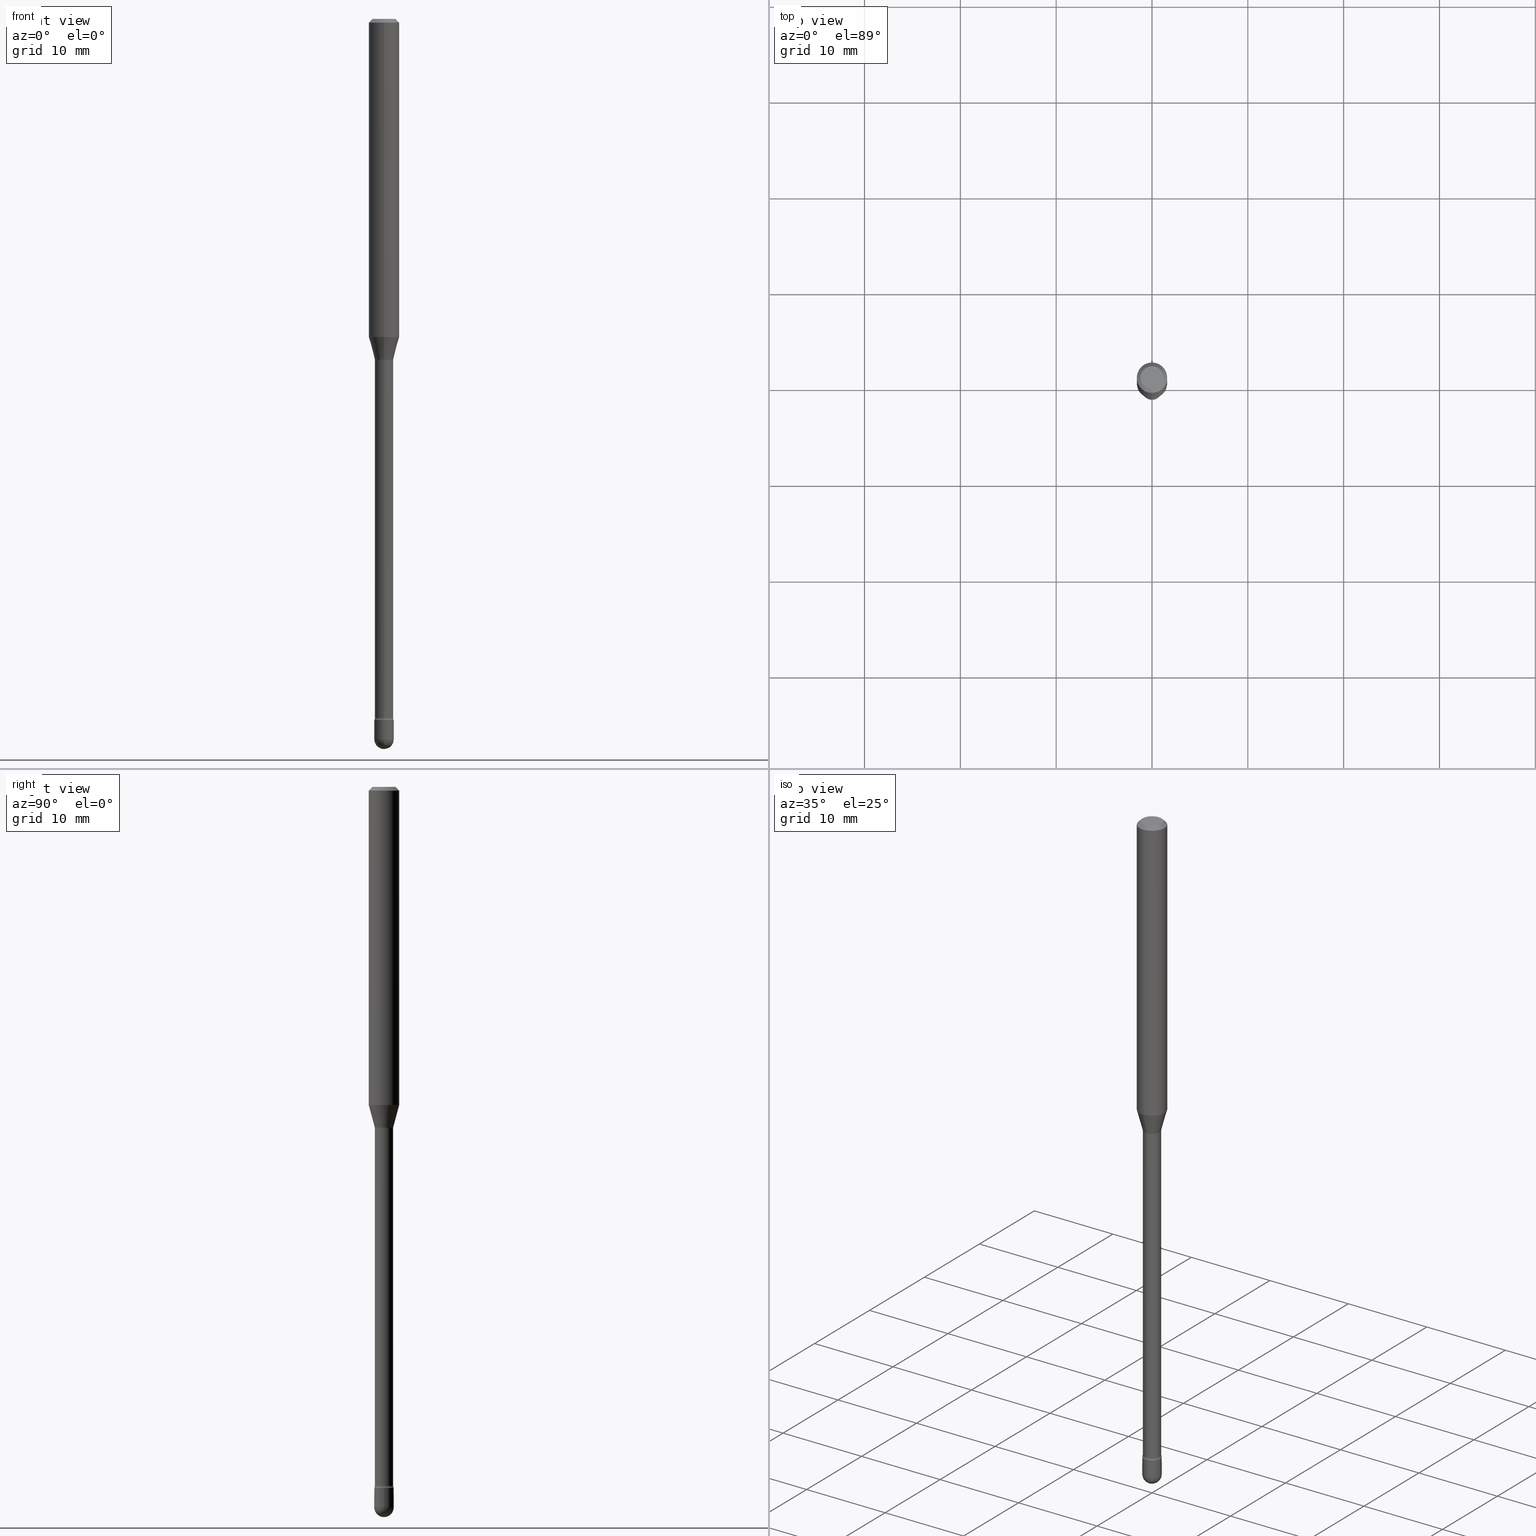
[diagram: canonical four-view strip — front | top / right | iso, engineering-drawing reading convention]
A machine part, canonical four-view strip (front | top / right | iso — engineering-drawing reading convention). The complete STEP part file that produces these views, byte-faithful:
ISO-10303-21;
HEADER;
FILE_DESCRIPTION (( 'STEP AP203' ),
    '1' );
FILE_NAME ('03958.STEP',
    '2024-04-09T21:27:05',
    ( '' ),
    ( '' ),
    'SwSTEP 2.0',
    'SolidWorks 2023',
    '' );
FILE_SCHEMA (( 'CONFIG_CONTROL_DESIGN' ));
ENDSEC;

DATA;
#1 = CARTESIAN_POINT ( 'NONE',  ( 7.042922645107763374E-29, -1.005550566135659145E-14, -2.880000000000000338 ) ) ;
#2 = DATE_AND_TIME ( #227, #59 ) ;
#3 = CARTESIAN_POINT ( 'NONE',  ( -1.169113584055446105E-44, 1.669184350826100908E-30, 4.780733988912460139E-16 ) ) ;
#4 = CARTESIAN_POINT ( 'NONE',  ( 3.196391155914031550E-29, -4.563635153160466520E-15, -1.307071934891535170 ) ) ;
#5 = DATE_TIME_ROLE ( 'creation_date' ) ;
#6 = EDGE_CURVE ( 'NONE', #301, #547, #500, .T. ) ;
#7 = FACE_OUTER_BOUND ( 'NONE', #32, .T. ) ;
#8 = COORDINATED_UNIVERSAL_TIME_OFFSET ( 5, 0, .BEHIND. ) ;
#9 = PRODUCT ( '03958', '03958', '', ( #136 ) ) ;
#10 = CIRCLE ( 'NONE', #329, 0.04000000000000000083 ) ;
#11 = CIRCLE ( 'NONE', #357, 0.03760000000000021658 ) ;
#12 = FACE_OUTER_BOUND ( 'NONE', #152, .T. ) ;
#13 = EDGE_CURVE ( 'NONE', #490, #332, #565, .T. ) ;
#14 = COORDINATED_UNIVERSAL_TIME_OFFSET ( 5, 0, .BEHIND. ) ;
#15 = ORIENTED_EDGE ( 'NONE', *, *, #549, .F. ) ;
#16 = PRODUCT_DEFINITION_SHAPE ( 'NONE', 'NONE',  #511 ) ;
#17 = CARTESIAN_POINT ( 'NONE',  ( 3.196391155914031550E-29, -4.563635153160466520E-15, -1.307071934891535170 ) ) ;
#18 = PERSON_AND_ORGANIZATION ( #374, #232 ) ;
#19 = DIRECTION ( 'NONE',  ( 1.000000000000000000, -7.105427357601001070E-15, 4.926315676103906127E-29 ) ) ;
#20 = EDGE_CURVE ( 'NONE', #375, #336, #282, .T. ) ;
#21 = CONICAL_SURFACE ( 'NONE', #539, 0.03811111260566397291, 0.2617993877991496854 ) ;
#22 = AXIS2_PLACEMENT_3D ( 'NONE', #296, #280, #557 ) ;
#23 = CIRCLE ( 'NONE', #245, 0.04749999999999999362 ) ;
#24 = EDGE_LOOP ( 'NONE', ( #538, #72, #457, #553 ) ) ;
#25 = ORIENTED_EDGE ( 'NONE', *, *, #380, .T. ) ;
#26 = EDGE_CURVE ( 'NONE', #328, #27, #354, .T. ) ;
#27 = VERTEX_POINT ( 'NONE', #87 ) ;
#28 = DIRECTION ( 'NONE',  ( 2.445459251773528233E-29, -3.491495021304371789E-15, -1.000000000000000000 ) ) ;
#29 = ORIENTED_EDGE ( 'NONE', *, *, #535, .F. ) ;
#30 = AXIS2_PLACEMENT_3D ( 'NONE', #412, #19, #491 ) ;
#31 = SPHERICAL_SURFACE ( 'NONE', #510, 0.04000000000000004940 ) ;
#32 = EDGE_LOOP ( 'NONE', ( #427, #160, #239, #149 ) ) ;
#33 = CYLINDRICAL_SURFACE ( 'NONE', #456, 0.04000000000000000083 ) ;
#34 = DIRECTION ( 'NONE',  ( 1.000000000000000000, -6.982962677686284065E-15, 0.000000000000000000 ) ) ;
#35 = ORIENTED_EDGE ( 'NONE', *, *, #286, .F. ) ;
#36 = CARTESIAN_POINT ( 'NONE',  ( 3.574424759935130628E-16, 0.03811111260565909487, -1.398092501787273179 ) ) ;
#37 = ORIENTED_EDGE ( 'NONE', *, *, #299, .F. ) ;
#38 = LINE ( 'NONE', #523, #284 ) ;
#39 = DIRECTION ( 'NONE',  ( -6.982962677686265922E-15, -1.000000000000000000, 3.491495021304371789E-15 ) ) ;
#40 = CIRCLE ( 'NONE', #422, 0.03999999999999999389 ) ;
#41 = AXIS2_PLACEMENT_3D ( 'NONE', #48, #189, #313 ) ;
#42 = DIRECTION ( 'NONE',  ( -6.982962677686265922E-15, -1.000000000000000000, 3.491495021304371789E-15 ) ) ;
#43 = CARTESIAN_POINT ( 'NONE',  ( -2.793185071073799766E-16, -0.04000000000001003447, -2.880000000000000338 ) ) ;
#44 = CC_DESIGN_DATE_AND_TIME_ASSIGNMENT ( #321, #446, ( #566 ) ) ;
#45 = DIRECTION ( 'NONE',  ( 1.000000000000000000, -6.982962677686285643E-15, 0.000000000000000000 ) ) ;
#46 = DIRECTION ( 'NONE',  ( -2.445468806185136597E-29, 3.491481338843145583E-15, 1.000000000000000000 ) ) ;
#47 = DIRECTION ( 'NONE',  ( -6.982962677686266711E-15, -1.000000000000000000, 0.000000000000000000 ) ) ;
#48 = CARTESIAN_POINT ( 'NONE',  ( 0.000000000000000000, 0.000000000000000000, 0.000000000000000000 ) ) ;
#49 = CIRCLE ( 'NONE', #366, 0.04000000000000004940 ) ;
#50 = AXIS2_PLACEMENT_3D ( 'NONE', #128, #28, #503 ) ;
#51 = TOROIDAL_SURFACE ( 'NONE', #369, 0.05260000000000000092, 0.01500000000000002547 ) ;
#52 = DIRECTION ( 'NONE',  ( -2.445459251773528513E-29, 3.491495021304371789E-15, 1.000000000000000000 ) ) ;
#53 = APPLICATION_PROTOCOL_DEFINITION ( 'international standard', 'config_control_design', 1994, #556 ) ;
#54 = ADVANCED_FACE ( 'NONE', ( #7 ), #21, .T. ) ;
#55 = CARTESIAN_POINT ( 'NONE',  ( 3.418978243330885643E-29, -4.881433009313237785E-15, -1.398092501787273179 ) ) ;
#56 = DIRECTION ( 'NONE',  ( -2.445459251773528513E-29, 3.491495021304371789E-15, 1.000000000000000000 ) ) ;
#57 = COORDINATED_UNIVERSAL_TIME_OFFSET ( 5, 0, .BEHIND. ) ;
#58 = AXIS2_PLACEMENT_3D ( 'NONE', #64, #145, #235 ) ;
#59 = LOCAL_TIME ( 17, 27, 5.000000000000000000, #57 ) ;
#60 = DIRECTION ( 'NONE',  ( -1.000000000000000000, 6.982962677686265922E-15, -4.883557194083112340E-29 ) ) ;
#61 = PERSON_AND_ORGANIZATION ( #374, #232 ) ;
#62 = ORIENTED_EDGE ( 'NONE', *, *, #86, .F. ) ;
#63 = ADVANCED_FACE ( 'NONE', ( #260 ), #303, .F. ) ;
#64 = CARTESIAN_POINT ( 'NONE',  ( 2.023483380808133062E-45, -2.889151225446079243E-31, -8.274638215463707693E-17 ) ) ;
#65 = ORIENTED_EDGE ( 'NONE', *, *, #505, .F. ) ;
#66 = EDGE_CURVE ( 'NONE', #490, #362, #49, .T. ) ;
#67 = CIRCLE ( 'NONE', #454, 0.06250000000000000000 ) ;
#68 = CIRCLE ( 'NONE', #30, 0.01500000000000002720 ) ;
#69 = PLANE ( 'NONE',  #244 ) ;
#70 = VERTEX_POINT ( 'NONE', #398 ) ;
#71 = DIRECTION ( 'NONE',  ( -6.982962677686265922E-15, -1.000000000000000000, 3.491495021304371000E-15 ) ) ;
#72 = ORIENTED_EDGE ( 'NONE', *, *, #193, .T. ) ;
#73 = CONICAL_SURFACE ( 'NONE', #493, 0.06250000000000000000, 0.7853981633974483900 ) ;
#74 = CARTESIAN_POINT ( 'NONE',  ( 2.756905814749898778E-16, 0.03759999999999019682, -2.871861204020250469 ) ) ;
#75 = ORIENTED_EDGE ( 'NONE', *, *, #169, .F. ) ;
#76 = FACE_OUTER_BOUND ( 'NONE', #208, .T. ) ;
#77 = EDGE_LOOP ( 'NONE', ( #326, #502, #236, #462 ) ) ;
#78 = CARTESIAN_POINT ( 'NONE',  ( 3.668188877660312984E-31, -5.237242531956586600E-17, -0.01500000000000008271 ) ) ;
#79 = CARTESIAN_POINT ( 'NONE',  ( -2.661284769304159261E-16, -0.03811111260566885789, -1.398092501787273179 ) ) ;
#80 = CARTESIAN_POINT ( 'NONE',  ( -4.364351673553912750E-16, -0.06250000000000005551, -0.01499999999999986587 ) ) ;
#81 = FACE_OUTER_BOUND ( 'NONE', #373, .T. ) ;
#82 = CIRCLE ( 'NONE', #464, 0.01500000000000002720 ) ;
#83 = EDGE_CURVE ( 'NONE', #547, #301, #10, .T. ) ;
#84 = DIRECTION ( 'NONE',  ( -2.445459251773528513E-29, 3.491495021304371789E-15, 1.000000000000000000 ) ) ;
#85 = CARTESIAN_POINT ( 'NONE',  ( 4.440892098500946636E-16, 0.06249999999999993755, -0.01500000000000030129 ) ) ;
#86 = EDGE_CURVE ( 'NONE', #106, #367, #92, .T. ) ;
#87 = CARTESIAN_POINT ( 'NONE',  ( -2.625593966809693369E-16, -0.03760000000000489340, -1.401974787463811101 ) ) ;
#88 = DIRECTION ( 'NONE',  ( 1.000000000000000000, -6.982962677686285643E-15, 0.000000000000000000 ) ) ;
#89 = ADVANCED_FACE ( 'NONE', ( #484 ), #164, .F. ) ;
#90 = DIRECTION ( 'NONE',  ( -7.105427357601000281E-15, -1.000000000000000000, 0.000000000000000000 ) ) ;
#91 = SHAPE_DEFINITION_REPRESENTATION ( #16, #270 ) ;
#92 = CIRCLE ( 'NONE', #413, 0.06250000000000000000 ) ;
#93 = AXIS2_PLACEMENT_3D ( 'NONE', #320, #411, #448 ) ;
#94 =( GEOMETRIC_REPRESENTATION_CONTEXT ( 3 ) GLOBAL_UNCERTAINTY_ASSIGNED_CONTEXT ( ( #107 ) ) GLOBAL_UNIT_ASSIGNED_CONTEXT ( ( #393, #344, #444 ) ) REPRESENTATION_CONTEXT ( 'NONE', 'WORKASPACE' ) );
#95 = APPROVAL_STATUS ( 'not_yet_approved' ) ;
#96 = DIRECTION ( 'NONE',  ( -4.851104656540964275E-15, -0.7071067811865500152, -0.7071067811865450192 ) ) ;
#97 = PERSON_AND_ORGANIZATION ( #374, #232 ) ;
#98 = DIRECTION ( 'NONE',  ( 6.982962677686265922E-15, 1.000000000000000000, -3.483106191921935554E-15 ) ) ;
#99 = CALENDAR_DATE ( 2024, 9, 4 ) ;
#100 = ORIENTED_EDGE ( 'NONE', *, *, #211, .T. ) ;
#101 = ADVANCED_FACE ( 'NONE', ( #404 ), #351, .T. ) ;
#102 = AXIS2_PLACEMENT_3D ( 'NONE', #255, #210, #156 ) ;
#103 = CARTESIAN_POINT ( 'NONE',  ( 7.238587666308004730E-29, -1.033478476297570976E-14, -2.959999999999999964 ) ) ;
#104 = EDGE_LOOP ( 'NONE', ( #414, #424 ) ) ;
#105 = CARTESIAN_POINT ( 'NONE',  ( -4.287811248607203282E-16, -0.06250000000000005551, -0.01499999999999986587 ) ) ;
#106 = VERTEX_POINT ( 'NONE', #355 ) ;
#107 = UNCERTAINTY_MEASURE_WITH_UNIT (LENGTH_MEASURE( 1.000000000000000082E-05 ), #393, 'distance_accuracy_value', 'NONE');
#108 = ORIENTED_EDGE ( 'NONE', *, *, #286, .T. ) ;
#109 = AXIS2_PLACEMENT_3D ( 'NONE', #559, #476, #551 ) ;
#110 = LOCAL_TIME ( 17, 27, 5.000000000000000000, #14 ) ;
#111 = EDGE_LOOP ( 'NONE', ( #334, #122, #253, #466 ) ) ;
#112 = EDGE_LOOP ( 'NONE', ( #187, #545 ) ) ;
#113 = CARTESIAN_POINT ( 'NONE',  ( -1.169113584055446105E-44, 1.669184350826100908E-30, 4.780733988912460139E-16 ) ) ;
#114 = EDGE_CURVE ( 'NONE', #119, #455, #67, .T. ) ;
#115 = VERTEX_POINT ( 'NONE', #305 ) ;
#116 = CARTESIAN_POINT ( 'NONE',  ( -0.04000000000000000083, -9.910908415117944412E-15, -2.880000000000000338 ) ) ;
#117 = EDGE_CURVE ( 'NONE', #362, #197, #212, .T. ) ;
#118 = AXIS2_PLACEMENT_3D ( 'NONE', #218, #140, #45 ) ;
#119 = VERTEX_POINT ( 'NONE', #80 ) ;
#120 = CARTESIAN_POINT ( 'NONE',  ( 3.428472214756603413E-29, -4.894987990424152224E-15, -1.401974787463811101 ) ) ;
#121 = DIRECTION ( 'NONE',  ( -2.445459251773528513E-29, 3.491495021304371789E-15, 1.000000000000000000 ) ) ;
#122 = ORIENTED_EDGE ( 'NONE', *, *, #66, .T. ) ;
#123 = CARTESIAN_POINT ( 'NONE',  ( 3.737454790098842441E-16, 0.05259999999999016157, -2.871861204020250469 ) ) ;
#124 = DIRECTION ( 'NONE',  ( -2.445468806185136597E-29, 3.491481338843145583E-15, 1.000000000000000000 ) ) ;
#125 = ORIENTED_EDGE ( 'NONE', *, *, #117, .T. ) ;
#126 = CARTESIAN_POINT ( 'NONE',  ( -4.364351673553916201E-16, -0.06250000000000000000, 6.962918377227692754E-16 ) ) ;
#127 = EDGE_CURVE ( 'NONE', #375, #367, #257, .T. ) ;
#128 = CARTESIAN_POINT ( 'NONE',  ( 3.316907271900976096E-16, 0.04749999999999999362, 3.181749485634678954E-17 ) ) ;
#129 = CARTESIAN_POINT ( 'NONE',  ( 7.238587666308004730E-29, -1.033478476297570976E-14, -2.959999999999999964 ) ) ;
#130 = DIRECTION ( 'NONE',  ( 4.937700262164548042E-15, 0.7071067811865451302, -0.7071067811865499042 ) ) ;
#131 = AXIS2_PLACEMENT_3D ( 'NONE', #480, #392, #220 ) ;
#132 = VECTOR ( 'NONE', #56, 39.37007874015748143 ) ;
#133 = AXIS2_PLACEMENT_3D ( 'NONE', #215, #302, #470 ) ;
#134 = DIRECTION ( 'NONE',  ( -2.445468806185136877E-29, 3.491481338843145188E-15, 1.000000000000000000 ) ) ;
#135 = CARTESIAN_POINT ( 'NONE',  ( 7.238587666308004730E-29, -1.033478476297570976E-14, -2.959999999999999964 ) ) ;
#136 = MECHANICAL_CONTEXT ( 'NONE', #556, 'mechanical' ) ;
#137 = DIRECTION ( 'NONE',  ( 1.000000000000000000, -6.982962677686265922E-15, 4.883557194083112340E-29 ) ) ;
#138 = EDGE_CURVE ( 'NONE', #197, #332, #323, .T. ) ;
#139 = PERSON_AND_ORGANIZATION_ROLE ( 'creator' ) ;
#140 = DIRECTION ( 'NONE',  ( -2.445468806185136597E-29, 3.491481338843145583E-15, 1.000000000000000000 ) ) ;
#141 = CARTESIAN_POINT ( 'NONE',  ( 0.03999999999999999389, -1.047444401652943635E-14, -2.959999999999999964 ) ) ;
#142 = APPROVAL_ROLE ( '' ) ;
#143 = ORIENTED_EDGE ( 'NONE', *, *, #86, .T. ) ;
#144 = CC_DESIGN_PERSON_AND_ORGANIZATION_ASSIGNMENT ( #225, #146, ( #9 ) ) ;
#145 = DIRECTION ( 'NONE',  ( -2.445459251773528513E-29, 3.491495021304371789E-15, 1.000000000000000000 ) ) ;
#146 = PERSON_AND_ORGANIZATION_ROLE ( 'design_owner' ) ;
#147 = CIRCLE ( 'NONE', #102, 0.03760000000000000148 ) ;
#148 = DIRECTION ( 'NONE',  ( -1.000000000000000000, 6.982962677686265922E-15, -4.883557194083112340E-29 ) ) ;
#149 = ORIENTED_EDGE ( 'NONE', *, *, #175, .F. ) ;
#150 = EDGE_CURVE ( 'NONE', #382, #359, #213, .T. ) ;
#151 = ORIENTED_EDGE ( 'NONE', *, *, #66, .F. ) ;
#152 = EDGE_LOOP ( 'NONE', ( #29, #198, #196, #65 ) ) ;
#153 = AXIS2_PLACEMENT_3D ( 'NONE', #180, #442, #439 ) ;
#154 = VECTOR ( 'NONE', #395, 39.37007874015748143 ) ;
#155 = ORIENTED_EDGE ( 'NONE', *, *, #138, .T. ) ;
#156 = DIRECTION ( 'NONE',  ( -6.982962677686265922E-15, -1.000000000000000000, 0.000000000000000000 ) ) ;
#157 = EDGE_LOOP ( 'NONE', ( #75, #100, #125, #166, #242 ) ) ;
#158 = FACE_OUTER_BOUND ( 'NONE', #237, .T. ) ;
#159 = ADVANCED_FACE ( 'NONE', ( #522 ), #477, .T. ) ;
#160 = ORIENTED_EDGE ( 'NONE', *, *, #20, .T. ) ;
#161 = DIRECTION ( 'NONE',  ( -6.982962677686265922E-15, -1.000000000000000000, 3.483106191921935554E-15 ) ) ;
#162 = DIRECTION ( 'NONE',  ( -6.982962677686266711E-15, -1.000000000000000000, 0.000000000000000000 ) ) ;
#163 = ADVANCED_FACE ( 'NONE', ( #308 ), #267, .T. ) ;
#164 = TOROIDAL_SURFACE ( 'NONE', #482, 0.05260000000000019521, 0.01499999999999997689 ) ;
#165 = VECTOR ( 'NONE', #560, 39.37007874015748143 ) ;
#166 = ORIENTED_EDGE ( 'NONE', *, *, #524, .T. ) ;
#167 = CYLINDRICAL_SURFACE ( 'NONE', #109, 0.04000000000000000083 ) ;
#168 = CC_DESIGN_SECURITY_CLASSIFICATION ( #566, ( #474 ) ) ;
#169 = EDGE_CURVE ( 'NONE', #70, #359, #540, .T. ) ;
#170 = ORIENTED_EDGE ( 'NONE', *, *, #201, .T. ) ;
#171 = CARTESIAN_POINT ( 'NONE',  ( -2.625593966809348736E-16, -0.03760000000001024328, -2.871861204020250469 ) ) ;
#172 = CARTESIAN_POINT ( 'NONE',  ( 7.238587666308004730E-29, -1.033478476297570976E-14, -2.959999999999999964 ) ) ;
#173 = CARTESIAN_POINT ( 'NONE',  ( 7.042950161813194609E-29, -1.005546625586826130E-14, -2.880000000000000338 ) ) ;
#174 = CARTESIAN_POINT ( 'NONE',  ( 4.364351673553919652E-16, 0.06249999999999995143, -0.01500000000000030129 ) ) ;
#175 = EDGE_CURVE ( 'NONE', #367, #106, #501, .T. ) ;
#176 = CIRCLE ( 'NONE', #58, 0.04749999999999999362 ) ;
#177 = LOCAL_TIME ( 17, 27, 5.000000000000000000, #403 ) ;
#178 = DIRECTION ( 'NONE',  ( -6.982962677686265922E-15, -1.000000000000000000, 0.000000000000000000 ) ) ;
#179 = DIRECTION ( 'NONE',  ( 6.982962677686266711E-15, 1.000000000000000000, 0.000000000000000000 ) ) ;
#180 = CARTESIAN_POINT ( 'NONE',  ( 3.418978243330885643E-29, -4.881433009313237785E-15, -1.398092501787273179 ) ) ;
#181 = CALENDAR_DATE ( 2024, 9, 4 ) ;
#182 = CLOSED_SHELL ( 'NONE', ( #423, #401, #101, #159, #447 ) ) ;
#183 = VECTOR ( 'NONE', #130, 39.37007874015748143 ) ;
#184 = EDGE_CURVE ( 'NONE', #205, #515, #176, .T. ) ;
#185 = DIRECTION ( 'NONE',  ( 2.445459251773528513E-29, -3.491495021304371789E-15, -1.000000000000000000 ) ) ;
#186 = PERSON_AND_ORGANIZATION ( #374, #232 ) ;
#187 = ORIENTED_EDGE ( 'NONE', *, *, #150, .T. ) ;
#188 = DIRECTION ( 'NONE',  ( -6.982962677686265922E-15, -1.000000000000000000, 4.370956789862821150E-15 ) ) ;
#189 = DIRECTION ( 'NONE',  ( 0.000000000000000000, 0.000000000000000000, 1.000000000000000000 ) ) ;
#190 = ORIENTED_EDGE ( 'NONE', *, *, #307, .F. ) ;
#191 = DIRECTION ( 'NONE',  ( -6.982962677686266711E-15, -1.000000000000000000, 0.000000000000000000 ) ) ;
#192 = ORIENTED_EDGE ( 'NONE', *, *, #221, .T. ) ;
#193 = EDGE_CURVE ( 'NONE', #375, #115, #68, .T. ) ;
#194 = AXIS2_PLACEMENT_3D ( 'NONE', #199, #335, #288 ) ;
#195 = MANIFOLD_SOLID_BREP ( 'Body-Move/Copy2[1]', #182 ) ;
#196 = ORIENTED_EDGE ( 'NONE', *, *, #114, .T. ) ;
#197 = VERTEX_POINT ( 'NONE', #141 ) ;
#198 = ORIENTED_EDGE ( 'NONE', *, *, #250, .T. ) ;
#199 = CARTESIAN_POINT ( 'NONE',  ( 3.418978243330885643E-29, -4.881433009313237785E-15, -1.398092501787273179 ) ) ;
#200 = AXIS2_PLACEMENT_3D ( 'NONE', #172, #346, #394 ) ;
#201 = EDGE_CURVE ( 'NONE', #336, #27, #82, .T. ) ;
#202 = APPROVAL_PERSON_ORGANIZATION ( #18, #228, #142 ) ;
#203 = ORIENTED_EDGE ( 'NONE', *, *, #150, .F. ) ;
#204 = CARTESIAN_POINT ( 'NONE',  ( 7.238587666308004730E-29, -1.033478476297570976E-14, -2.959999999999999964 ) ) ;
#205 = VERTEX_POINT ( 'NONE', #488 ) ;
#206 = DIRECTION ( 'NONE',  ( -2.445459251773528513E-29, 3.491495021304371789E-15, 1.000000000000000000 ) ) ;
#207 = DIRECTION ( 'NONE',  ( -2.445459251773528513E-29, 3.491495021304371789E-15, 1.000000000000000000 ) ) ;
#208 = EDGE_LOOP ( 'NONE', ( #506, #108, #543, #290 ) ) ;
#209 = CARTESIAN_POINT ( 'NONE',  ( -1.169113584055446105E-44, 1.669184350826100908E-30, 4.780733988912460139E-16 ) ) ;
#210 = DIRECTION ( 'NONE',  ( -2.445459251773528513E-29, 3.491495021304371789E-15, 1.000000000000000000 ) ) ;
#211 = EDGE_CURVE ( 'NONE', #70, #362, #40, .T. ) ;
#212 = CIRCLE ( 'NONE', #118, 0.03999999999999999389 ) ;
#213 = CIRCLE ( 'NONE', #440, 0.04000000000000000083 ) ;
#214 = ORIENTED_EDGE ( 'NONE', *, *, #372, .F. ) ;
#215 = CARTESIAN_POINT ( 'NONE',  ( 3.418978243330885643E-29, -4.881433009313237785E-15, -1.398092501787273179 ) ) ;
#216 = CARTESIAN_POINT ( 'NONE',  ( 2.793185071075210841E-16, 0.03999999999998994638, -2.880000000000000338 ) ) ;
#217 = DIRECTION ( 'NONE',  ( 1.839019923739596371E-15, 0.2588190451025244032, 0.9659258262890673130 ) ) ;
#218 = CARTESIAN_POINT ( 'NONE',  ( 7.238587666308004730E-29, -1.033478476297570976E-14, -2.959999999999999964 ) ) ;
#219 = FACE_OUTER_BOUND ( 'NONE', #157, .T. ) ;
#220 = DIRECTION ( 'NONE',  ( -6.982962677686265922E-15, -1.000000000000000000, 3.491495021304371789E-15 ) ) ;
#221 = EDGE_CURVE ( 'NONE', #297, #328, #528, .T. ) ;
#222 = AXIS2_PLACEMENT_3D ( 'NONE', #135, #137, #179 ) ;
#223 = AXIS2_PLACEMENT_3D ( 'NONE', #291, #429, #432 ) ;
#224 = DIRECTION ( 'NONE',  ( -1.000000000000000000, 7.105427357601001070E-15, -4.926315508542082329E-29 ) ) ;
#225 = PERSON_AND_ORGANIZATION ( #374, #232 ) ;
#226 = CARTESIAN_POINT ( 'NONE',  ( 7.023046990124811063E-29, -1.002704980158431387E-14, -2.871861204020250469 ) ) ;
#227 = CALENDAR_DATE ( 2024, 9, 4 ) ;
#228 = APPROVAL ( #407, 'UNSPECIFIED' ) ;
#229 = FACE_OUTER_BOUND ( 'NONE', #451, .T. ) ;
#230 = APPROVAL_DATE_TIME ( #266, #504 ) ;
#231 = AXIS2_PLACEMENT_3D ( 'NONE', #123, #554, #341 ) ;
#232 = ORGANIZATION ( 'UNSPECIFIED', 'UNSPECIFIED', '' ) ;
#233 = DIRECTION ( 'NONE',  ( 6.982962677686265922E-15, 1.000000000000000000, 0.000000000000000000 ) ) ;
#234 = ORIENTED_EDGE ( 'NONE', *, *, #327, .F. ) ;
#235 = DIRECTION ( 'NONE',  ( -6.982962677686266711E-15, -1.000000000000000000, 3.491495021304372183E-15 ) ) ;
#236 = ORIENTED_EDGE ( 'NONE', *, *, #505, .T. ) ;
#237 = EDGE_LOOP ( 'NONE', ( #248, #497, #278, #15 ) ) ;
#238 = AXIS2_PLACEMENT_3D ( 'NONE', #3, #387, #431 ) ;
#239 = ORIENTED_EDGE ( 'NONE', *, *, #327, .T. ) ;
#240 = LINE ( 'NONE', #79, #314 ) ;
#241 = PRODUCT_RELATED_PRODUCT_CATEGORY ( 'detail', '', ( #9 ) ) ;
#242 = ORIENTED_EDGE ( 'NONE', *, *, #364, .F. ) ;
#243 = CARTESIAN_POINT ( 'NONE',  ( 3.428485609800787057E-29, -4.894968807958481776E-15, -1.401974787463811101 ) ) ;
#244 = AXIS2_PLACEMENT_3D ( 'NONE', #216, #507, #388 ) ;
#245 = AXIS2_PLACEMENT_3D ( 'NONE', #309, #509, #337 ) ;
#246 = EDGE_LOOP ( 'NONE', ( #151, #343, #379, #340 ) ) ;
#247 = CARTESIAN_POINT ( 'NONE',  ( -3.673038368462286869E-16, -0.05260000000001022885, -2.871861204020250469 ) ) ;
#248 = ORIENTED_EDGE ( 'NONE', *, *, #380, .F. ) ;
#249 = LENGTH_MEASURE_WITH_UNIT ( LENGTH_MEASURE( 0.02539999999999999897 ), #436 );
#250 = EDGE_CURVE ( 'NONE', #515, #119, #453, .T. ) ;
#251 = DIMENSIONAL_EXPONENTS ( 1.000000000000000000, 0.000000000000000000, 0.000000000000000000, 0.000000000000000000, 0.000000000000000000, 0.000000000000000000, 0.000000000000000000 ) ;
#252 = CARTESIAN_POINT ( 'NONE',  ( 2.793185071075232042E-16, 0.03999999999998968964, -2.959999999999999964 ) ) ;
#253 = ORIENTED_EDGE ( 'NONE', *, *, #211, .F. ) ;
#254 = DIRECTION ( 'NONE',  ( -2.445459251773528513E-29, 3.491495021304371789E-15, 1.000000000000000000 ) ) ;
#255 = CARTESIAN_POINT ( 'NONE',  ( 3.428472214756603413E-29, -4.894987990424152224E-15, -1.401974787463811101 ) ) ;
#256 = AXIS2_PLACEMENT_3D ( 'NONE', #113, #514, #71 ) ;
#257 = LINE ( 'NONE', #435, #368 ) ;
#258 = CARTESIAN_POINT ( 'NONE',  ( 7.238587666308004730E-29, -1.033478476297570976E-14, -2.959999999999999964 ) ) ;
#259 = CONICAL_SURFACE ( 'NONE', #133, 0.03811111260566397291, 0.2617993877991496854 ) ;
#260 = FACE_OUTER_BOUND ( 'NONE', #274, .T. ) ;
#261 = CYLINDRICAL_SURFACE ( 'NONE', #408, 0.06250000000000000000 ) ;
#262 = ADVANCED_FACE ( 'NONE', ( #12 ), #73, .T. ) ;
#263 = CYLINDRICAL_SURFACE ( 'NONE', #238, 0.06250000000000000000 ) ;
#264 = DIRECTION ( 'NONE',  ( -2.445459251773528513E-29, 3.491495021304371789E-15, 1.000000000000000000 ) ) ;
#265 = DIRECTION ( 'NONE',  ( -6.982962677686265922E-15, -1.000000000000000000, 0.000000000000000000 ) ) ;
#266 = DATE_AND_TIME ( #99, #177 ) ;
#267 = CONICAL_SURFACE ( 'NONE', #93, 0.06250000000000000000, 0.7853981633974483900 ) ;
#268 = DIRECTION ( 'NONE',  ( -2.438088387897960049E-29, 3.491481338843145188E-15, 1.000000000000000000 ) ) ;
#269 = APPROVAL_DATE_TIME ( #2, #348 ) ;
#270 = ADVANCED_BREP_SHAPE_REPRESENTATION ( '03958', ( #195, #385, #41 ), #94 ) ;
#271 = CARTESIAN_POINT ( 'NONE',  ( 3.668188877660312984E-31, -5.237242531956586600E-17, -0.01500000000000008271 ) ) ;
#272 = CALENDAR_DATE ( 2024, 9, 4 ) ;
#273 = CARTESIAN_POINT ( 'NONE',  ( 2.671640686457984199E-16, 0.03760000000000010556, 3.467931860902013131E-16 ) ) ;
#274 = EDGE_LOOP ( 'NONE', ( #430, #214, #542, #417 ) ) ;
#275 = AXIS2_PLACEMENT_3D ( 'NONE', #17, #358, #188 ) ;
#276 = APPROVAL_PERSON_ORGANIZATION ( #186, #504, #481 ) ;
#277 = DIRECTION ( 'NONE',  ( -2.445459251773528513E-29, 3.491495021304371789E-15, 1.000000000000000000 ) ) ;
#278 = ORIENTED_EDGE ( 'NONE', *, *, #498, .T. ) ;
#279 = CC_DESIGN_PERSON_AND_ORGANIZATION_ASSIGNMENT ( #449, #310, ( #566 ) ) ;
#280 = DIRECTION ( 'NONE',  ( -2.445459251773528513E-29, 3.491495021304371789E-15, 1.000000000000000000 ) ) ;
#281 = ORIENTED_EDGE ( 'NONE', *, *, #26, .T. ) ;
#282 = CIRCLE ( 'NONE', #153, 0.03811111260566397291 ) ;
#283 = AXIS2_PLACEMENT_3D ( 'NONE', #406, #60, #233 ) ;
#284 = VECTOR ( 'NONE', #134, 39.37007874015748143 ) ;
#285 = EDGE_LOOP ( 'NONE', ( #473, #508 ) ) ;
#286 = EDGE_CURVE ( 'NONE', #297, #115, #445, .T. ) ;
#287 = ORIENTED_EDGE ( 'NONE', *, *, #564, .T. ) ;
#288 = DIRECTION ( 'NONE',  ( -6.982962677686266711E-15, -1.000000000000000000, 0.000000000000000000 ) ) ;
#289 = ADVANCED_FACE ( 'NONE', ( #229 ), #532, .T. ) ;
#290 = ORIENTED_EDGE ( 'NONE', *, *, #26, .F. ) ;
#291 = CARTESIAN_POINT ( 'NONE',  ( -1.169113584055446105E-44, 1.669184350826100908E-30, 4.780733988912460139E-16 ) ) ;
#292 = VECTOR ( 'NONE', #52, 39.37007874015748143 ) ;
#293 = AXIS2_PLACEMENT_3D ( 'NONE', #468, #124, #34 ) ;
#294 = ORIENTED_EDGE ( 'NONE', *, *, #114, .F. ) ;
#295 = DIRECTION ( 'NONE',  ( -2.445468806185136597E-29, 3.491481338843145583E-15, 1.000000000000000000 ) ) ;
#296 = CARTESIAN_POINT ( 'NONE',  ( 3.428485609800787057E-29, -4.894968807958481776E-15, -1.401974787463811101 ) ) ;
#297 = VERTEX_POINT ( 'NONE', #74 ) ;
#298 = DIRECTION ( 'NONE',  ( 1.000000000000000000, -6.982962677686265922E-15, 4.876176775795935793E-29 ) ) ;
#299 = EDGE_CURVE ( 'NONE', #328, #547, #450, .T. ) ;
#300 = DIRECTION ( 'NONE',  ( -6.982962677686266711E-15, -1.000000000000000000, 0.000000000000000000 ) ) ;
#301 = VERTEX_POINT ( 'NONE', #426 ) ;
#302 = DIRECTION ( 'NONE',  ( -2.445459251773528513E-29, 3.491495021304371789E-15, 1.000000000000000000 ) ) ;
#303 = TOROIDAL_SURFACE ( 'NONE', #131, 0.05260000000000019521, 0.01499999999999997689 ) ;
#304 = AXIS2_PLACEMENT_3D ( 'NONE', #258, #46, #88 ) ;
#305 = CARTESIAN_POINT ( 'NONE',  ( 2.671640686458685299E-16, 0.03759999999999510956, -1.401974787463811101 ) ) ;
#306 = AXIS2_PLACEMENT_3D ( 'NONE', #78, #206, #161 ) ;
#307 = EDGE_CURVE ( 'NONE', #115, #27, #147, .T. ) ;
#308 = FACE_OUTER_BOUND ( 'NONE', #77, .T. ) ;
#309 = CARTESIAN_POINT ( 'NONE',  ( 2.023483380808133062E-45, -2.889151225446079243E-31, -8.274638215463707693E-17 ) ) ;
#310 = PERSON_AND_ORGANIZATION_ROLE ( 'classification_officer' ) ;
#311 = DIRECTION ( 'NONE',  ( -2.445459251773528513E-29, 3.491495021304371789E-15, 1.000000000000000000 ) ) ;
#312 = AXIS2_PLACEMENT_3D ( 'NONE', #173, #268, #525 ) ;
#313 = DIRECTION ( 'NONE',  ( 1.000000000000000000, 0.000000000000000000, 0.000000000000000000 ) ) ;
#314 = VECTOR ( 'NONE', #333, 39.37007874015748854 ) ;
#315 = CIRCLE ( 'NONE', #306, 0.06250000000000000000 ) ;
#316 = DIRECTION ( 'NONE',  ( -2.445459251773528513E-29, 3.491495021304371789E-15, 1.000000000000000000 ) ) ;
#317 = DIRECTION ( 'NONE',  ( -2.445468806185136877E-29, 3.491481338843145188E-15, 1.000000000000000000 ) ) ;
#318 = APPROVAL_STATUS ( 'not_yet_approved' ) ;
#319 = EDGE_LOOP ( 'NONE', ( #534, #390, #494, #37 ) ) ;
#320 = CARTESIAN_POINT ( 'NONE',  ( 3.668188877660312984E-31, -5.237242531956586600E-17, -0.01500000000000008271 ) ) ;
#321 = DATE_AND_TIME ( #272, #110 ) ;
#322 = ORIENTED_EDGE ( 'NONE', *, *, #498, .F. ) ;
#323 = CIRCLE ( 'NONE', #200, 0.03999999999999999389 ) ;
#324 = ADVANCED_FACE ( 'NONE', ( #345 ), #69, .F. ) ;
#325 = CARTESIAN_POINT ( 'NONE',  ( 7.023019551180786883E-29, -1.002708909571388477E-14, -2.871861204020250469 ) ) ;
#326 = ORIENTED_EDGE ( 'NONE', *, *, #250, .F. ) ;
#327 = EDGE_CURVE ( 'NONE', #336, #106, #240, .T. ) ;
#328 = VERTEX_POINT ( 'NONE', #171 ) ;
#329 = AXIS2_PLACEMENT_3D ( 'NONE', #1, #402, #178 ) ;
#330 = CIRCLE ( 'NONE', #304, 0.03999999999999999389 ) ;
#331 = CC_DESIGN_APPROVAL ( #348, ( #511 ) ) ;
#332 = VERTEX_POINT ( 'NONE', #252 ) ;
#333 = DIRECTION ( 'NONE',  ( -1.807323732225326195E-15, -0.2588190451025176309, 0.9659258262890690894 ) ) ;
#334 = ORIENTED_EDGE ( 'NONE', *, *, #13, .F. ) ;
#335 = DIRECTION ( 'NONE',  ( -2.445459251773528513E-29, 3.491495021304371789E-15, 1.000000000000000000 ) ) ;
#336 = VERTEX_POINT ( 'NONE', #418 ) ;
#337 = DIRECTION ( 'NONE',  ( -6.982962677686266711E-15, -1.000000000000000000, 3.491495021304372183E-15 ) ) ;
#338 = CARTESIAN_POINT ( 'NONE',  ( 0.04000000000000000083, -1.033478476297571291E-14, -2.880000000000000338 ) ) ;
#339 = AXIS2_PLACEMENT_3D ( 'NONE', #437, #264, #265 ) ;
#340 = ORIENTED_EDGE ( 'NONE', *, *, #117, .F. ) ;
#341 = DIRECTION ( 'NONE',  ( 7.105427357601001859E-15, 1.000000000000000000, 0.000000000000000000 ) ) ;
#342 = FACE_OUTER_BOUND ( 'NONE', #285, .T. ) ;
#343 = ORIENTED_EDGE ( 'NONE', *, *, #13, .T. ) ;
#344 =( NAMED_UNIT ( * ) PLANE_ANGLE_UNIT ( ) SI_UNIT ( $, .RADIAN. ) );
#345 = FACE_OUTER_BOUND ( 'NONE', #104, .T. ) ;
#346 = DIRECTION ( 'NONE',  ( -2.445468806185136597E-29, 3.491481338843145583E-15, 1.000000000000000000 ) ) ;
#347 = DIRECTION ( 'NONE',  ( -6.982962677686265922E-15, -1.000000000000000000, 0.000000000000000000 ) ) ;
#348 = APPROVAL ( #95, 'UNSPECIFIED' ) ;
#349 = DIRECTION ( 'NONE',  ( 1.000000000000000000, -6.982962677686284065E-15, 0.000000000000000000 ) ) ;
#350 = CARTESIAN_POINT ( 'NONE',  ( -3.773273898774340269E-16, -0.04749999999999999362, 8.309963135732055889E-17 ) ) ;
#351 = PLANE ( 'NONE',  #312 ) ;
#352 = DATE_AND_TIME ( #356, #452 ) ;
#353 = CC_DESIGN_PERSON_AND_ORGANIZATION_ASSIGNMENT ( #531, #492, ( #474 ) ) ;
#354 = LINE ( 'NONE', #443, #292 ) ;
#355 = CARTESIAN_POINT ( 'NONE',  ( -4.364351673553599671E-16, -0.06250000000000460743, -1.307071934891534726 ) ) ;
#356 = CALENDAR_DATE ( 2024, 9, 4 ) ;
#357 = AXIS2_PLACEMENT_3D ( 'NONE', #383, #121, #162 ) ;
#358 = DIRECTION ( 'NONE',  ( -2.445459251773528513E-29, 3.491495021304371789E-15, 1.000000000000000000 ) ) ;
#359 = VERTEX_POINT ( 'NONE', #116 ) ;
#360 = CARTESIAN_POINT ( 'NONE',  ( -3.673038368462633474E-16, -0.05260000000000489284, -1.401974787463810879 ) ) ;
#361 = APPROVAL_ROLE ( '' ) ;
#362 = VERTEX_POINT ( 'NONE', #460 ) ;
#363 = ADVANCED_FACE ( 'NONE', ( #76 ), #458, .T. ) ;
#364 = EDGE_CURVE ( 'NONE', #359, #382, #541, .T. ) ;
#365 = DIRECTION ( 'NONE',  ( 1.000000000000000000, -6.982962677686285643E-15, 0.000000000000000000 ) ) ;
#366 = AXIS2_PLACEMENT_3D ( 'NONE', #129, #224, #90 ) ;
#367 = VERTEX_POINT ( 'NONE', #472 ) ;
#368 = VECTOR ( 'NONE', #217, 39.37007874015748143 ) ;
#369 = AXIS2_PLACEMENT_3D ( 'NONE', #243, #207, #39 ) ;
#370 = ADVANCED_FACE ( 'NONE', ( #552 ), #51, .F. ) ;
#371 = ORIENTED_EDGE ( 'NONE', *, *, #169, .T. ) ;
#372 = EDGE_CURVE ( 'NONE', #328, #297, #11, .T. ) ;
#373 = EDGE_LOOP ( 'NONE', ( #512, #371, #203, #550, #155 ) ) ;
#374 = PERSON ( 'UNSPECIFIED', 'UNSPECIFIED', 'UNSPECIFIED', ('UNSPECIFIED'), ('UNSPECIFIED'), ('UNSPECIFIED') ) ;
#375 = VERTEX_POINT ( 'NONE', #36 ) ;
#376 = FACE_OUTER_BOUND ( 'NONE', #111, .T. ) ;
#377 = AXIS2_PLACEMENT_3D ( 'NONE', #325, #277, #191 ) ;
#378 = APPROVAL_PERSON_ORGANIZATION ( #61, #348, #361 ) ;
#379 = ORIENTED_EDGE ( 'NONE', *, *, #138, .F. ) ;
#380 = EDGE_CURVE ( 'NONE', #367, #455, #555, .T. ) ;
#381 = DIRECTION ( 'NONE',  ( -1.000000000000000000, 6.982962677686265922E-15, -4.883557194083112340E-29 ) ) ;
#382 = VERTEX_POINT ( 'NONE', #338 ) ;
#383 = CARTESIAN_POINT ( 'NONE',  ( 7.023019551180786883E-29, -1.002708909571388477E-14, -2.871861204020250469 ) ) ;
#384 = ADVANCED_FACE ( 'NONE', ( #342 ), #517, .F. ) ;
#385 = MANIFOLD_SOLID_BREP ( 'Body-Move/Copy2[2]', #519 ) ;
#386 = EDGE_LOOP ( 'NONE', ( #143, #25, #294, #322 ) ) ;
#387 = DIRECTION ( 'NONE',  ( -2.445459251773528513E-29, 3.491495021304371789E-15, 1.000000000000000000 ) ) ;
#388 = DIRECTION ( 'NONE',  ( -6.982962677686265922E-15, -1.000000000000000000, 3.491495021304371789E-15 ) ) ;
#389 = TOROIDAL_SURFACE ( 'NONE', #22, 0.05260000000000000092, 0.01500000000000002547 ) ;
#390 = ORIENTED_EDGE ( 'NONE', *, *, #461, .T. ) ;
#391 = CARTESIAN_POINT ( 'NONE',  ( 4.440892098500625669E-16, 0.06250000000000000000, 2.598549600597228511E-16 ) ) ;
#392 = DIRECTION ( 'NONE',  ( -2.445459251773528513E-29, 3.491495021304371789E-15, 1.000000000000000000 ) ) ;
#393 =( CONVERSION_BASED_UNIT ( 'INCH', #249 ) LENGTH_UNIT ( ) NAMED_UNIT ( #251 ) );
#394 = DIRECTION ( 'NONE',  ( 1.000000000000000000, -6.982962677686285643E-15, 0.000000000000000000 ) ) ;
#395 = DIRECTION ( 'NONE',  ( -2.445459251773528513E-29, 3.491495021304371789E-15, 1.000000000000000000 ) ) ;
#396 = EDGE_CURVE ( 'NONE', #336, #375, #483, .T. ) ;
#397 = AXIS2_PLACEMENT_3D ( 'NONE', #247, #463, #300 ) ;
#398 = CARTESIAN_POINT ( 'NONE',  ( -0.03999999999999999389, -9.910908415117944412E-15, -2.959999999999999964 ) ) ;
#399 = APPROVAL_DATE_TIME ( #486, #228 ) ;
#400 = APPLICATION_CONTEXT ( 'configuration controlled 3d designs of mechanical parts and assemblies' ) ;
#401 = ADVANCED_FACE ( 'NONE', ( #376 ), #31, .T. ) ;
#402 = DIRECTION ( 'NONE',  ( -2.445459251773528513E-29, 3.491495021304371789E-15, 1.000000000000000000 ) ) ;
#403 = COORDINATED_UNIVERSAL_TIME_OFFSET ( 5, 0, .BEHIND. ) ;
#404 = FACE_OUTER_BOUND ( 'NONE', #112, .T. ) ;
#405 = PERSON_AND_ORGANIZATION ( #374, #232 ) ;
#406 = CARTESIAN_POINT ( 'NONE',  ( 7.238587666308004730E-29, -1.033478476297570976E-14, -2.959999999999999964 ) ) ;
#407 = APPROVAL_STATUS ( 'not_yet_approved' ) ;
#408 = AXIS2_PLACEMENT_3D ( 'NONE', #209, #513, #438 ) ;
#409 = EDGE_LOOP ( 'NONE', ( #469, #499, #62, #234 ) ) ;
#410 = ADVANCED_FACE ( 'NONE', ( #421 ), #389, .F. ) ;
#411 = DIRECTION ( 'NONE',  ( 2.445459251773528513E-29, -3.491495021304371789E-15, -1.000000000000000000 ) ) ;
#412 = CARTESIAN_POINT ( 'NONE',  ( 3.737454790098469212E-16, 0.05259999999999510900, -1.401974787463811323 ) ) ;
#413 = AXIS2_PLACEMENT_3D ( 'NONE', #4, #311, #527 ) ;
#414 = ORIENTED_EDGE ( 'NONE', *, *, #83, .F. ) ;
#415 = CC_DESIGN_PERSON_AND_ORGANIZATION_ASSIGNMENT ( #405, #139, ( #511 ) ) ;
#416 = LOCAL_TIME ( 17, 27, 5.000000000000000000, #489 ) ;
#417 = ORIENTED_EDGE ( 'NONE', *, *, #83, .T. ) ;
#418 = CARTESIAN_POINT ( 'NONE',  ( -2.661284769304159261E-16, -0.03811111260566885789, -1.398092501787273179 ) ) ;
#419 = ADVANCED_FACE ( 'NONE', ( #158 ), #263, .T. ) ;
#420 = ORIENTED_EDGE ( 'NONE', *, *, #193, .F. ) ;
#421 = FACE_OUTER_BOUND ( 'NONE', #558, .T. ) ;
#422 = AXIS2_PLACEMENT_3D ( 'NONE', #103, #496, #365 ) ;
#423 = ADVANCED_FACE ( 'NONE', ( #81 ), #33, .T. ) ;
#424 = ORIENTED_EDGE ( 'NONE', *, *, #6, .F. ) ;
#425 = FACE_OUTER_BOUND ( 'NONE', #409, .T. ) ;
#426 = CARTESIAN_POINT ( 'NONE',  ( 2.842170943041103382E-16, 0.03999999999998991862, -2.880000000000000338 ) ) ;
#427 = ORIENTED_EDGE ( 'NONE', *, *, #127, .F. ) ;
#428 = CARTESIAN_POINT ( 'NONE',  ( 7.338116751133768567E-29, -1.047199472293114121E-14, -3.000000000000000444 ) ) ;
#429 = DIRECTION ( 'NONE',  ( -2.445459251773528513E-29, 3.491495021304371789E-15, 1.000000000000000000 ) ) ;
#430 = ORIENTED_EDGE ( 'NONE', *, *, #461, .F. ) ;
#431 = DIRECTION ( 'NONE',  ( -6.982962677686265922E-15, -1.000000000000000000, 3.491495021304372183E-15 ) ) ;
#432 = DIRECTION ( 'NONE',  ( -6.982962677686265922E-15, -1.000000000000000000, 3.491495021304371000E-15 ) ) ;
#433 = CIRCLE ( 'NONE', #231, 0.01499999999999997689 ) ;
#434 = CC_DESIGN_APPROVAL ( #504, ( #566 ) ) ;
#435 = CARTESIAN_POINT ( 'NONE',  ( 2.707957421369313633E-16, 0.03811111260565909487, -1.398092501787273179 ) ) ;
#436 =( LENGTH_UNIT ( ) NAMED_UNIT ( * ) SI_UNIT ( $, .METRE. ) );
#437 = CARTESIAN_POINT ( 'NONE',  ( 7.042922645107763374E-29, -1.005550566135659145E-14, -2.880000000000000338 ) ) ;
#438 = DIRECTION ( 'NONE',  ( -6.982962677686265922E-15, -1.000000000000000000, 3.491495021304372183E-15 ) ) ;
#439 = DIRECTION ( 'NONE',  ( -6.982962677686266711E-15, -1.000000000000000000, 0.000000000000000000 ) ) ;
#440 = AXIS2_PLACEMENT_3D ( 'NONE', #475, #562, #349 ) ;
#441 = CIRCLE ( 'NONE', #495, 0.03760000000000000148 ) ;
#442 = DIRECTION ( 'NONE',  ( -2.445459251773528513E-29, 3.491495021304371789E-15, 1.000000000000000000 ) ) ;
#443 = CARTESIAN_POINT ( 'NONE',  ( -2.625593966810043426E-16, -0.03760000000000010556, 6.093536116922908133E-16 ) ) ;
#444 =( NAMED_UNIT ( * ) SI_UNIT ( $, .STERADIAN. ) SOLID_ANGLE_UNIT ( ) );
#445 = LINE ( 'NONE', #273, #132 ) ;
#446 = DATE_TIME_ROLE ( 'classification_date' ) ;
#447 = ADVANCED_FACE ( 'NONE', ( #219 ), #167, .T. ) ;
#448 = DIRECTION ( 'NONE',  ( 6.982962677686265922E-15, 1.000000000000000000, -3.483106191921935554E-15 ) ) ;
#449 = PERSON_AND_ORGANIZATION ( #374, #232 ) ;
#450 = CIRCLE ( 'NONE', #397, 0.01499999999999997689 ) ;
#451 = EDGE_LOOP ( 'NONE', ( #35, #192, #281, #190 ) ) ;
#452 = LOCAL_TIME ( 17, 27, 5.000000000000000000, #8 ) ;
#453 = LINE ( 'NONE', #105, #546 ) ;
#454 = AXIS2_PLACEMENT_3D ( 'NONE', #530, #316, #518 ) ;
#455 = VERTEX_POINT ( 'NONE', #85 ) ;
#456 = AXIS2_PLACEMENT_3D ( 'NONE', #478, #295, #298 ) ;
#457 = ORIENTED_EDGE ( 'NONE', *, *, #307, .T. ) ;
#458 = CYLINDRICAL_SURFACE ( 'NONE', #223, 0.03760000000000010556 ) ;
#459 = ORIENTED_EDGE ( 'NONE', *, *, #396, .F. ) ;
#460 = CARTESIAN_POINT ( 'NONE',  ( -2.842170943039677516E-16, -0.04000000000001036754, -2.959999999999999964 ) ) ;
#461 = EDGE_CURVE ( 'NONE', #297, #301, #433, .T. ) ;
#462 = ORIENTED_EDGE ( 'NONE', *, *, #549, .T. ) ;
#463 = DIRECTION ( 'NONE',  ( -1.000000000000000000, 6.982962677686265922E-15, -4.883557194083112340E-29 ) ) ;
#464 = AXIS2_PLACEMENT_3D ( 'NONE', #360, #148, #485 ) ;
#465 = DESIGN_CONTEXT ( 'detailed design', #400, 'design' ) ;
#466 = ORIENTED_EDGE ( 'NONE', *, *, #479, .F. ) ;
#467 = FACE_OUTER_BOUND ( 'NONE', #386, .T. ) ;
#468 = CARTESIAN_POINT ( 'NONE',  ( 7.042950161813194609E-29, -1.005546625586826130E-14, -2.880000000000000338 ) ) ;
#469 = ORIENTED_EDGE ( 'NONE', *, *, #396, .T. ) ;
#470 = DIRECTION ( 'NONE',  ( -6.982962677686266711E-15, -1.000000000000000000, 0.000000000000000000 ) ) ;
#471 = ADVANCED_FACE ( 'NONE', ( #467 ), #261, .T. ) ;
#472 = CARTESIAN_POINT ( 'NONE',  ( 4.440892098500941706E-16, 0.06249999999999539951, -1.307071934891535392 ) ) ;
#473 = ORIENTED_EDGE ( 'NONE', *, *, #184, .T. ) ;
#474 = PRODUCT_DEFINITION_FORMATION_WITH_SPECIFIED_SOURCE ( 'ANY', '', #9, .NOT_KNOWN. ) ;
#475 = CARTESIAN_POINT ( 'NONE',  ( 7.042950161813194609E-29, -1.005546625586826130E-14, -2.880000000000000338 ) ) ;
#476 = DIRECTION ( 'NONE',  ( -2.445468806185136597E-29, 3.491481338843145583E-15, 1.000000000000000000 ) ) ;
#477 = SPHERICAL_SURFACE ( 'NONE', #283, 0.04000000000000004940 ) ;
#478 = CARTESIAN_POINT ( 'NONE',  ( 0.000000000000000000, 0.000000000000000000, 0.000000000000000000 ) ) ;
#479 = EDGE_CURVE ( 'NONE', #332, #70, #330, .T. ) ;
#480 = CARTESIAN_POINT ( 'NONE',  ( 7.023046990124811063E-29, -1.002704980158431387E-14, -2.871861204020250469 ) ) ;
#481 = APPROVAL_ROLE ( '' ) ;
#482 = AXIS2_PLACEMENT_3D ( 'NONE', #226, #561, #42 ) ;
#483 = CIRCLE ( 'NONE', #194, 0.03811111260566397291 ) ;
#484 = FACE_OUTER_BOUND ( 'NONE', #319, .T. ) ;
#485 = DIRECTION ( 'NONE',  ( -6.982962677686263555E-15, -1.000000000000000000, 0.000000000000000000 ) ) ;
#486 = DATE_AND_TIME ( #181, #416 ) ;
#487 = CC_DESIGN_PERSON_AND_ORGANIZATION_ASSIGNMENT ( #97, #526, ( #474 ) ) ;
#488 = CARTESIAN_POINT ( 'NONE',  ( 3.840629472727447874E-16, 0.04749999999999999362, -2.485923956665947374E-16 ) ) ;
#489 = COORDINATED_UNIVERSAL_TIME_OFFSET ( 5, 0, .BEHIND. ) ;
#490 = VERTEX_POINT ( 'NONE', #428 ) ;
#491 = DIRECTION ( 'NONE',  ( 7.105427357600997914E-15, 1.000000000000000000, 0.000000000000000000 ) ) ;
#492 = PERSON_AND_ORGANIZATION_ROLE ( 'creator' ) ;
#493 = AXIS2_PLACEMENT_3D ( 'NONE', #271, #185, #98 ) ;
#494 = ORIENTED_EDGE ( 'NONE', *, *, #6, .T. ) ;
#495 = AXIS2_PLACEMENT_3D ( 'NONE', #120, #254, #347 ) ;
#496 = DIRECTION ( 'NONE',  ( -2.445468806185136597E-29, 3.491481338843145583E-15, 1.000000000000000000 ) ) ;
#497 = ORIENTED_EDGE ( 'NONE', *, *, #175, .T. ) ;
#498 = EDGE_CURVE ( 'NONE', #106, #119, #563, .T. ) ;
#499 = ORIENTED_EDGE ( 'NONE', *, *, #127, .T. ) ;
#500 = CIRCLE ( 'NONE', #339, 0.04000000000000000083 ) ;
#501 = CIRCLE ( 'NONE', #275, 0.06250000000000000000 ) ;
#502 = ORIENTED_EDGE ( 'NONE', *, *, #184, .F. ) ;
#503 = DIRECTION ( 'NONE',  ( 6.982962677686265922E-15, 1.000000000000000000, -3.491495021304371789E-15 ) ) ;
#504 = APPROVAL ( #318, 'UNSPECIFIED' ) ;
#505 = EDGE_CURVE ( 'NONE', #205, #455, #516, .T. ) ;
#506 = ORIENTED_EDGE ( 'NONE', *, *, #372, .T. ) ;
#507 = DIRECTION ( 'NONE',  ( -2.445459251773528233E-29, 3.491495021304371789E-15, 1.000000000000000000 ) ) ;
#508 = ORIENTED_EDGE ( 'NONE', *, *, #535, .T. ) ;
#509 = DIRECTION ( 'NONE',  ( -2.445459251773528513E-29, 3.491495021304371789E-15, 1.000000000000000000 ) ) ;
#510 = AXIS2_PLACEMENT_3D ( 'NONE', #204, #381, #548 ) ;
#511 = PRODUCT_DEFINITION ( 'UNKNOWN', '', #474, #465 ) ;
#512 = ORIENTED_EDGE ( 'NONE', *, *, #479, .T. ) ;
#513 = DIRECTION ( 'NONE',  ( -2.445459251773528513E-29, 3.491495021304371789E-15, 1.000000000000000000 ) ) ;
#514 = DIRECTION ( 'NONE',  ( -2.445459251773528513E-29, 3.491495021304371789E-15, 1.000000000000000000 ) ) ;
#515 = VERTEX_POINT ( 'NONE', #350 ) ;
#516 = LINE ( 'NONE', #174, #183 ) ;
#517 = PLANE ( 'NONE',  #50 ) ;
#518 = DIRECTION ( 'NONE',  ( -6.982962677686265922E-15, -1.000000000000000000, 3.483106191921935554E-15 ) ) ;
#519 = CLOSED_SHELL ( 'NONE', ( #370, #363, #89, #262, #471, #544, #54, #419, #163, #384, #324, #63, #289, #410 ) ) ;
#520 = VECTOR ( 'NONE', #317, 39.37007874015748143 ) ;
#521 = CC_DESIGN_APPROVAL ( #228, ( #474 ) ) ;
#522 = FACE_OUTER_BOUND ( 'NONE', #246, .T. ) ;
#523 = CARTESIAN_POINT ( 'NONE',  ( 0.04000000000000000083, -2.793185071074506290E-16, 1.950470710318374387E-30 ) ) ;
#524 = EDGE_CURVE ( 'NONE', #197, #382, #38, .T. ) ;
#525 = DIRECTION ( 'NONE',  ( 1.000000000000000000, -6.982962677686265922E-15, 4.876176775795935793E-29 ) ) ;
#526 = PERSON_AND_ORGANIZATION_ROLE ( 'design_supplier' ) ;
#527 = DIRECTION ( 'NONE',  ( -6.982962677686265922E-15, -1.000000000000000000, 4.370956789862821150E-15 ) ) ;
#528 = CIRCLE ( 'NONE', #377, 0.03760000000000021658 ) ;
#529 = CC_DESIGN_DATE_AND_TIME_ASSIGNMENT ( #352, #5, ( #511 ) ) ;
#530 = CARTESIAN_POINT ( 'NONE',  ( 3.668188877660312984E-31, -5.237242531956586600E-17, -0.01500000000000008271 ) ) ;
#531 = PERSON_AND_ORGANIZATION ( #374, #232 ) ;
#532 = CYLINDRICAL_SURFACE ( 'NONE', #256, 0.03760000000000010556 ) ;
#533 = APPLICATION_PROTOCOL_DEFINITION ( 'international standard', 'config_control_design', 1994, #400 ) ;
#534 = ORIENTED_EDGE ( 'NONE', *, *, #221, .F. ) ;
#535 = EDGE_CURVE ( 'NONE', #515, #205, #23, .T. ) ;
#536 = CARTESIAN_POINT ( 'NONE',  ( -0.04000000000000000083, 2.842170943040400803E-16, -1.967574036101962509E-30 ) ) ;
#537 = SECURITY_CLASSIFICATION_LEVEL ( 'unclassified' ) ;
#538 = ORIENTED_EDGE ( 'NONE', *, *, #20, .F. ) ;
#539 = AXIS2_PLACEMENT_3D ( 'NONE', #55, #84, #47 ) ;
#540 = LINE ( 'NONE', #536, #520 ) ;
#541 = CIRCLE ( 'NONE', #293, 0.04000000000000000083 ) ;
#542 = ORIENTED_EDGE ( 'NONE', *, *, #299, .T. ) ;
#543 = ORIENTED_EDGE ( 'NONE', *, *, #564, .F. ) ;
#544 = ADVANCED_FACE ( 'NONE', ( #425 ), #259, .T. ) ;
#545 = ORIENTED_EDGE ( 'NONE', *, *, #364, .T. ) ;
#546 = VECTOR ( 'NONE', #96, 39.37007874015748143 ) ;
#547 = VERTEX_POINT ( 'NONE', #43 ) ;
#548 = DIRECTION ( 'NONE',  ( 6.982962677686265922E-15, 1.000000000000000000, 0.000000000000000000 ) ) ;
#549 = EDGE_CURVE ( 'NONE', #455, #119, #315, .T. ) ;
#550 = ORIENTED_EDGE ( 'NONE', *, *, #524, .F. ) ;
#551 = DIRECTION ( 'NONE',  ( 1.000000000000000000, -6.982962677686265922E-15, 4.876176775795935793E-29 ) ) ;
#552 = FACE_OUTER_BOUND ( 'NONE', #24, .T. ) ;
#553 = ORIENTED_EDGE ( 'NONE', *, *, #201, .F. ) ;
#554 = DIRECTION ( 'NONE',  ( 1.000000000000000000, -7.105427357601001070E-15, 4.926315676103906127E-29 ) ) ;
#555 = LINE ( 'NONE', #391, #165 ) ;
#556 = APPLICATION_CONTEXT ( 'configuration controlled 3d designs of mechanical parts and assemblies' ) ;
#557 = DIRECTION ( 'NONE',  ( -6.982962677686265922E-15, -1.000000000000000000, 3.491495021304371789E-15 ) ) ;
#558 = EDGE_LOOP ( 'NONE', ( #420, #459, #170, #287 ) ) ;
#559 = CARTESIAN_POINT ( 'NONE',  ( 0.000000000000000000, 0.000000000000000000, 0.000000000000000000 ) ) ;
#560 = DIRECTION ( 'NONE',  ( -2.445459251773528513E-29, 3.491495021304371789E-15, 1.000000000000000000 ) ) ;
#561 = DIRECTION ( 'NONE',  ( -2.445459251773528513E-29, 3.491495021304371789E-15, 1.000000000000000000 ) ) ;
#562 = DIRECTION ( 'NONE',  ( -2.445468806185136597E-29, 3.491481338843145583E-15, 1.000000000000000000 ) ) ;
#563 = LINE ( 'NONE', #126, #154 ) ;
#564 = EDGE_CURVE ( 'NONE', #27, #115, #441, .T. ) ;
#565 = CIRCLE ( 'NONE', #222, 0.04000000000000004940 ) ;
#566 = SECURITY_CLASSIFICATION ( '', '', #537 ) ;
ENDSEC;
END-ISO-10303-21;
